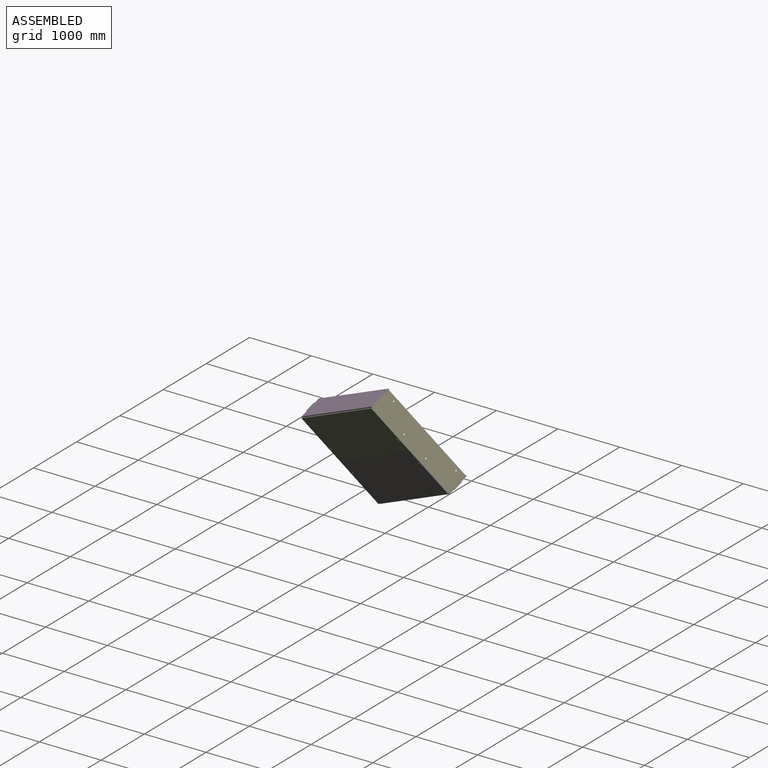
[diagram: assembled view]
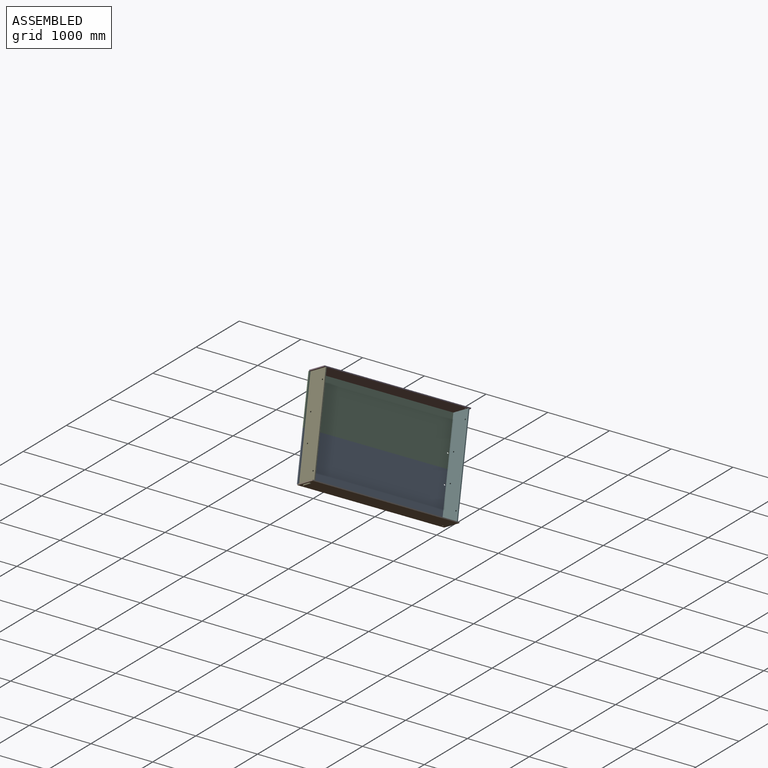
[diagram: assembled view, second angle]
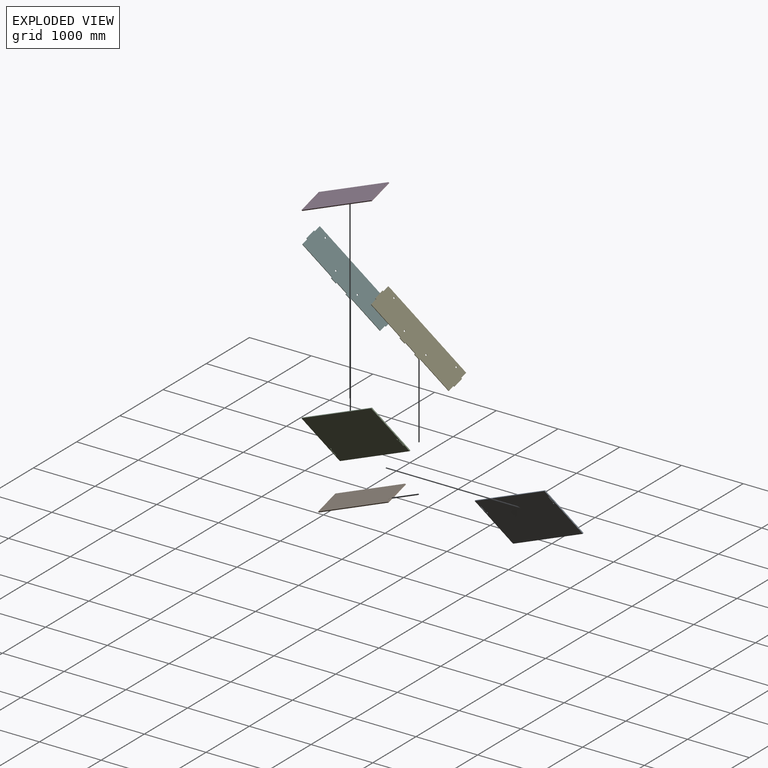
[diagram: exploded view]
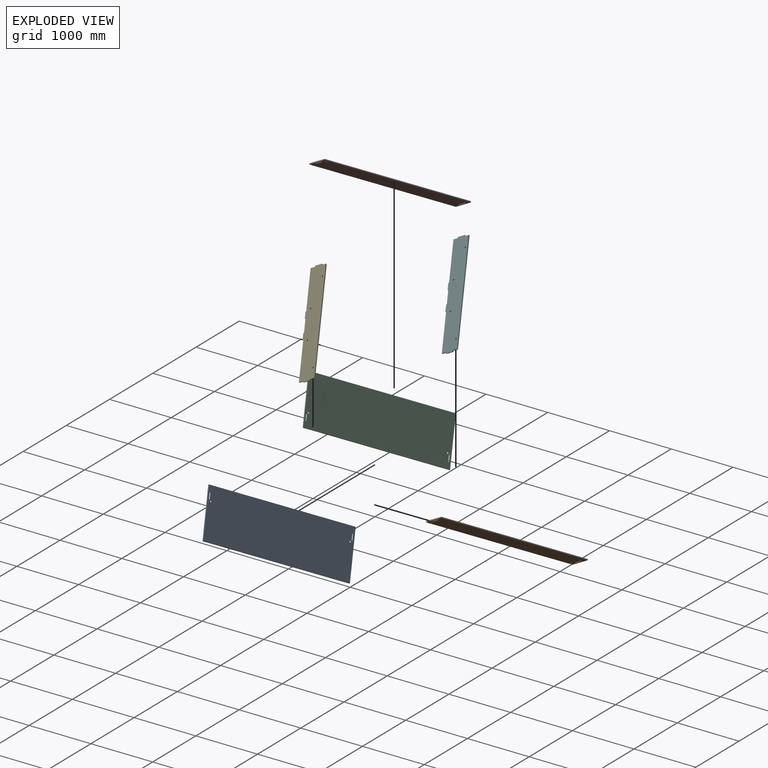
[diagram: exploded view, second angle]
ASSEMBLY  parts=6 mates=3
PART A: 16 faces, bbox 2400x784x16 mm
  f0: plane 100x16mm, normal (1,0,0), area 1600mm2, adj f1,f13,f14,f15
  f1: plane 16x16mm, normal (0,-1,0), area 256mm2, adj f0,f2,f14,f15
  f2: plane 100x16mm, normal (-1,0,0), area 1600mm2, adj f1,f13,f14,f15
  f3: plane 784x16mm, normal (-1,0,0), area 12544mm2, adj f4,f9,f14,f15
  f4: plane 2400x16mm, normal (0,-1,0), area 38400mm2, adj f3,f5,f14,f15
  f5: plane 784x16mm, normal (1,0,0), area 12544mm2, adj f4,f9,f14,f15
  f6: plane 16x16mm, normal (0,-1,0), area 256mm2, adj f7,f10,f14,f15
  f7: plane 100x16mm, normal (-1,0,0), area 1600mm2, adj f6,f8,f14,f15
  f8: plane 16x16mm, normal (0,1,0), area 256mm2, adj f7,f10,f14,f15
  f9: plane 2400x16mm, normal (0,1,0), area 38400mm2, adj f3,f5,f14,f15
  f10: plane 100x16mm, normal (1,0,0), area 1600mm2, adj f6,f8,f14,f15
  f11: cylinder r=12.5mm len=25mm, axis (0,0,-1), area 1256.6mm2, adj f14,f15
  f12: cylinder r=12.5mm len=25mm, axis (0,0,-1), area 1256.6mm2, adj f14,f15
  f13: plane 16x16mm, normal (0,1,0), area 256mm2, adj f0,f2,f14,f15
  f14: plane 2400x784mm, normal (0,0,1), area 1877418.3mm2, adj f0,f1,f2,f3,f4,f5,f6,f7
  f15: plane 2400x784mm, normal (0,0,-1), area 1877418.3mm2, adj f0,f1,f2,f3,f4,f5,f6,f7
PART B: 16 faces, bbox 2400x16x350 mm
  f0: plane 350x16mm, normal (1,0,0), area 5600mm2, adj f1,f13,f14,f15
  f1: plane 2400x16mm, normal (0,0,-1), area 38400mm2, adj f0,f2,f14,f15
  f2: plane 350x16mm, normal (-1,0,0), area 5600mm2, adj f1,f13,f14,f15
  f3: plane 150x16mm, normal (-1,0,0), area 2400mm2, adj f4,f9,f14,f15
  f4: plane 16x15.92mm, normal (0,0,-1), area 254.7mm2, adj f3,f5,f14,f15
  f5: plane 150x16mm, normal (1,0,0), area 2400mm2, adj f4,f9,f14,f15
  f6: plane 16x16mm, normal (0,0,-1), area 256mm2, adj f7,f10,f14,f15
  f7: plane 150x16mm, normal (1,0,0), area 2400mm2, adj f6,f8,f14,f15
  f8: plane 16x16mm, normal (0,0,1), area 256mm2, adj f7,f10,f14,f15
  f9: plane 16x16mm, normal (0,0,1), area 256mm2, adj f3,f5,f14,f15
  f10: plane 150x16mm, normal (-1,0,0), area 2400mm2, adj f6,f8,f14,f15
  f11: cylinder r=12.5mm len=25mm, axis (0,-1,0), area 1256.6mm2, adj f14,f15
  f12: cylinder r=12.5mm len=25mm, axis (0,-1,0), area 1256.6mm2, adj f14,f15
  f13: plane 2400x16mm, normal (0,0,1), area 38400mm2, adj f0,f2,f14,f15
  f14: plane 2400x350mm, normal (0,1,0), area 834224.3mm2, adj f0,f1,f2,f3,f4,f5,f6,f7
  f15: plane 2400x350mm, normal (0,-1,0), area 834224.3mm2, adj f0,f1,f2,f3,f4,f5,f6,f7
PART C: same geometry as A
PART D: same geometry as B
PART E: 26 faces, bbox 16x1616x366 mm
  f0: plane 1584x16mm, normal (0,0,1), area 25344mm2, adj f1,f19,f24,f25
  f1: plane 100x16mm, normal (0,-1,0), area 1600mm2, adj f0,f2,f24,f25
  f2: plane 16x16mm, normal (0,0,1), area 256mm2, adj f1,f3,f24,f25
  f3: plane 150x16mm, normal (0,-1,0), area 2400mm2, adj f2,f4,f24,f25
  f4: plane 16x16mm, normal (0,0,-1), area 256mm2, adj f3,f5,f24,f25
  f5: plane 100x16mm, normal (0,-1,0), area 1600mm2, adj f4,f6,f24,f25
  f6: plane 600x16mm, normal (0,0,-1), area 9600mm2, adj f5,f7,f24,f25
  f7: plane 16x16mm, normal (0,-1,0), area 256mm2, adj f6,f8,f24,f25
  f8: plane 100x16mm, normal (0,0,-1), area 1600mm2, adj f7,f9,f24,f25
  f9: plane 16x16mm, normal (0,1,0), area 256mm2, adj f8,f10,f24,f25
  f10: plane 200x16mm, normal (0,0,-1), area 3200mm2, adj f9,f11,f24,f25
  f11: plane 16x16mm, normal (0,-1,0), area 256mm2, adj f10,f12,f24,f25
  f12: plane 100x16mm, normal (0,0,-1), area 1600mm2, adj f11,f13,f24,f25
  f13: plane 16x16mm, normal (0,1,0), area 256mm2, adj f12,f14,f24,f25
  f14: plane 584x16mm, normal (0,0,-1), area 9344mm2, adj f13,f15,f24,f25
  f15: plane 100x16mm, normal (0,1,0), area 1600mm2, adj f14,f16,f24,f25
  f16: plane 16x16mm, normal (0,0,-1), area 256mm2, adj f15,f17,f24,f25
  f17: plane 150x16mm, normal (0,1,0), area 2400mm2, adj f16,f18,f24,f25
  f18: plane 16x16mm, normal (0,0,1), area 256mm2, adj f17,f19,f24,f25
  f19: plane 100x16mm, normal (0,1,0), area 1600mm2, adj f0,f18,f24,f25
  f20: cylinder r=12.5mm len=25mm, axis (-1,0,0), area 1256.6mm2, adj f24,f25
  f21: cylinder r=12.5mm len=25mm, axis (-1,0,0), area 1256.6mm2, adj f24,f25
  f22: cylinder r=12.5mm len=25mm, axis (-1,0,0), area 1256.6mm2, adj f24,f25
  f23: cylinder r=12.5mm len=25mm, axis (-1,0,0), area 1256.6mm2, adj f24,f25
  f24: plane 1616x366mm, normal (1,0,0), area 560436.5mm2, adj f0,f1,f2,f3,f4,f5,f6,f7
  f25: plane 1616x366mm, normal (-1,0,0), area 560436.5mm2, adj f0,f1,f2,f3,f4,f5,f6,f7
PART F: same geometry as E
PLACE A rot(axis=(0.32,0.8,-0.5),171.7deg) t=(-1370.01,-1436.68,-889.45)mm
PLACE B rot(axis=(0.92,-0.37,0.08),120deg) t=(-756.53,-324.22,-2322.68)mm
PLACE C rot(axis=(-0.08,0.53,0.85),142.4deg) t=(-1265.72,-1396.75,-1034.87)mm
PLACE D rot(axis=(-0.08,0.53,0.85),142.4deg) t=(-1265.72,-1396.75,-1034.87)mm
PLACE E rot(axis=(-0.83,-0.12,-0.54),73.6deg) t=(-1917.77,-1131.18,-1220.23)mm
PLACE F rot(axis=(-0.83,-0.12,-0.54),73.6deg) t=(-3751.31,-100.55,-2232.03)mm
MATE fastened B.f0 <-> A.f3  axis (0.78,-0.44,0.44) through (-167.77,-1570.1,-1163.33)mm
MATE fastened E.f2 <-> D.f6  axis (0.21,0.85,0.49) through (-1081.34,-1804.01,134.32)mm
MATE fastened A.f3 <-> C.f3  axis (-0.78,0.44,-0.44) through (-632.82,-1813.24,-580.65)mm
